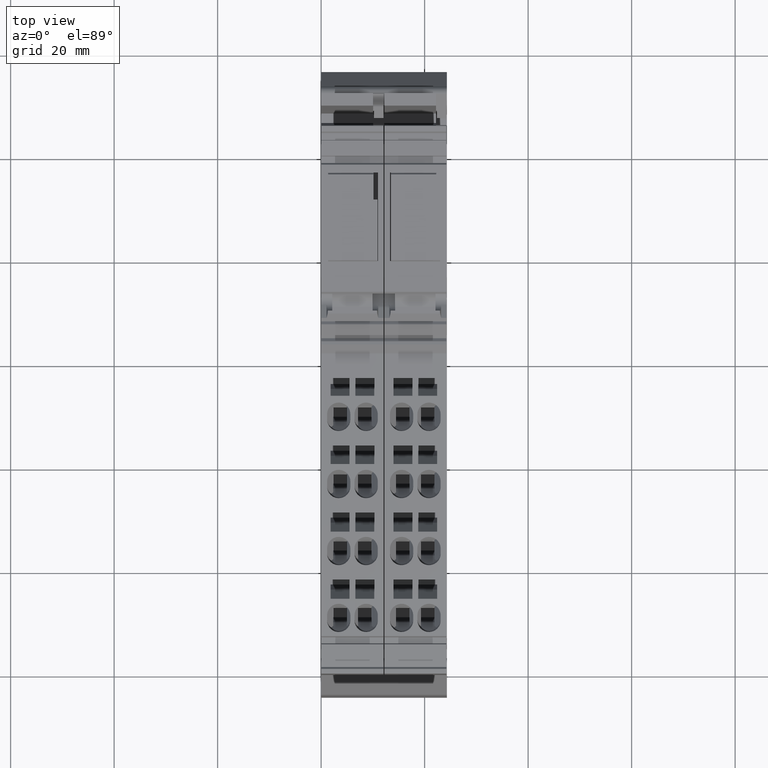
[diagram: clean part render]
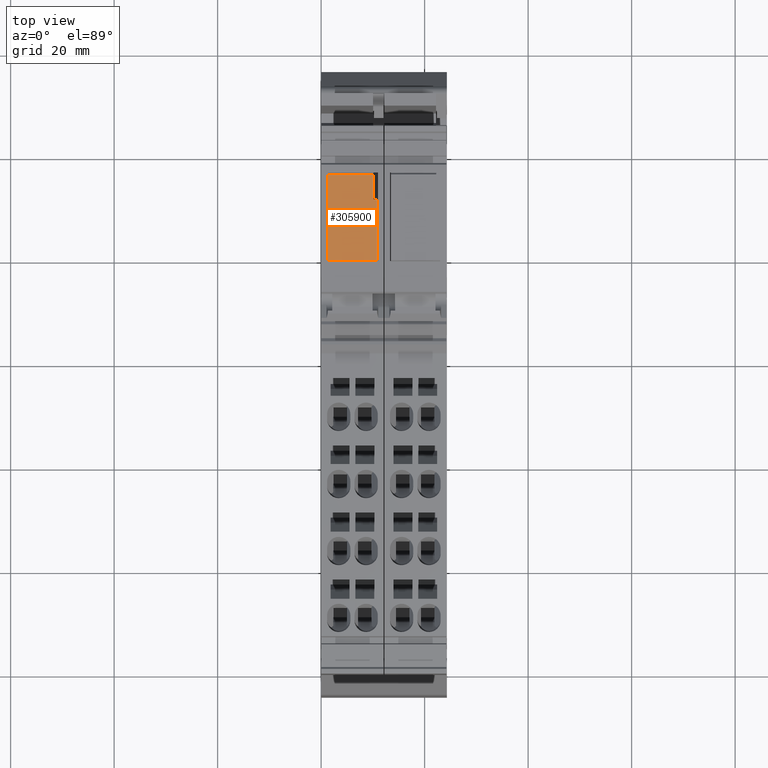
[diagram: same view with one face highlighted and labeled with its STEP entity id]
A machine part, top view. The second image highlights one B-rep face of the part: STEP entity #305900.
In plain terms, the highlighted planar face has unit normal (0, 0, 1).
Its self-contained STEP definition (entity closure, byte-faithful):
#305000=CARTESIAN_POINT('',(106.891351313916,84.4562740524357,
-9.59999999999789));
#305010=VERTEX_POINT('',#305000);
#305040=CARTESIAN_POINT('',(90.426738,84.4562740524359,-9.59999999999789
));
#305050=DIRECTION('',(-1.,1.05193631583234E-14,0.));
#305060=VECTOR('',#305050,1.);
#305070=LINE('',#305040,#305060);
#305080=CARTESIAN_POINT('',(90.2913513139157,84.4562740524359,
-9.59999999999789));
#305090=VERTEX_POINT('',#305080);
#305100=EDGE_CURVE('',#305010,#305090,#305070,.T.);
#305440=CARTESIAN_POINT('',(90.5147590000011,84.4562740524359,
-4.71143400000001));
#305450=DIRECTION('',(1.05193631583234E-14,1.,-0.));
#305460=DIRECTION('',(-1.,1.05193631583234E-14,0.));
#305470=AXIS2_PLACEMENT_3D('',#305440,#305450,#305460);
#305480=PLANE('',#305470);
#305490=ORIENTED_EDGE('',*,*,#305100,.T.);
#305500=CARTESIAN_POINT('',(106.891351313916,84.4562740524357,-0.25));
#305510=DIRECTION('',(0.,0.,1.));
#305520=VECTOR('',#305510,1.);
#305530=LINE('',#305500,#305520);
#305540=CARTESIAN_POINT('',(106.891351313916,84.4562740524357,
-0.850000000000001));
#305550=VERTEX_POINT('',#305540);
#305560=EDGE_CURVE('',#305010,#305550,#305530,.T.);
#305570=ORIENTED_EDGE('',*,*,#305560,.F.);
#305580=CARTESIAN_POINT('',(90.426738,84.4562740524359,
-0.850000000000001));
#305590=DIRECTION('',(1.,-1.05193631583234E-14,0.));
#305600=VECTOR('',#305590,1.);
#305610=LINE('',#305580,#305600);
#305620=CARTESIAN_POINT('',(101.991351313916,84.4562740524357,
-0.850000000000001));
#305630=VERTEX_POINT('',#305620);
#305640=EDGE_CURVE('',#305630,#305550,#305610,.T.);
#305650=ORIENTED_EDGE('',*,*,#305640,.T.);
#305660=CARTESIAN_POINT('',(101.991351313916,84.4562740524357,-0.25));
#305670=DIRECTION('',(0.,0.,-1.));
#305680=VECTOR('',#305670,1.);
#305690=LINE('',#305660,#305680);
#305700=CARTESIAN_POINT('',(101.991351313916,84.4562740524357,
-0.0999999999999872));
#305710=VERTEX_POINT('',#305700);
#305720=EDGE_CURVE('',#305710,#305630,#305690,.T.);
#305730=ORIENTED_EDGE('',*,*,#305720,.T.);
#305740=CARTESIAN_POINT('',(90.426738,84.4562740524359,
-0.0999999999999872));
#305750=DIRECTION('',(1.,-1.05193631583234E-14,0.));
#305760=VECTOR('',#305750,1.);
#305770=LINE('',#305740,#305760);
#305780=CARTESIAN_POINT('',(90.2913513139157,84.4562740524359,
-0.0999999999999872));
#305790=VERTEX_POINT('',#305780);
#305800=EDGE_CURVE('',#305790,#305710,#305770,.T.);
#305810=ORIENTED_EDGE('',*,*,#305800,.T.);
#305820=CARTESIAN_POINT('',(90.2913513139157,84.4562740524359,-0.25));
#305830=DIRECTION('',(0.,0.,-1.));
#305840=VECTOR('',#305830,1.);
#305850=LINE('',#305820,#305840);
#305860=EDGE_CURVE('',#305790,#305090,#305850,.T.);
#305870=ORIENTED_EDGE('',*,*,#305860,.F.);
#305880=EDGE_LOOP('',(#305870,#305810,#305730,#305650,#305570,#305490));
#305890=FACE_OUTER_BOUND('',#305880,.T.);
#305900=ADVANCED_FACE('',(#305890),#305480,.T.);